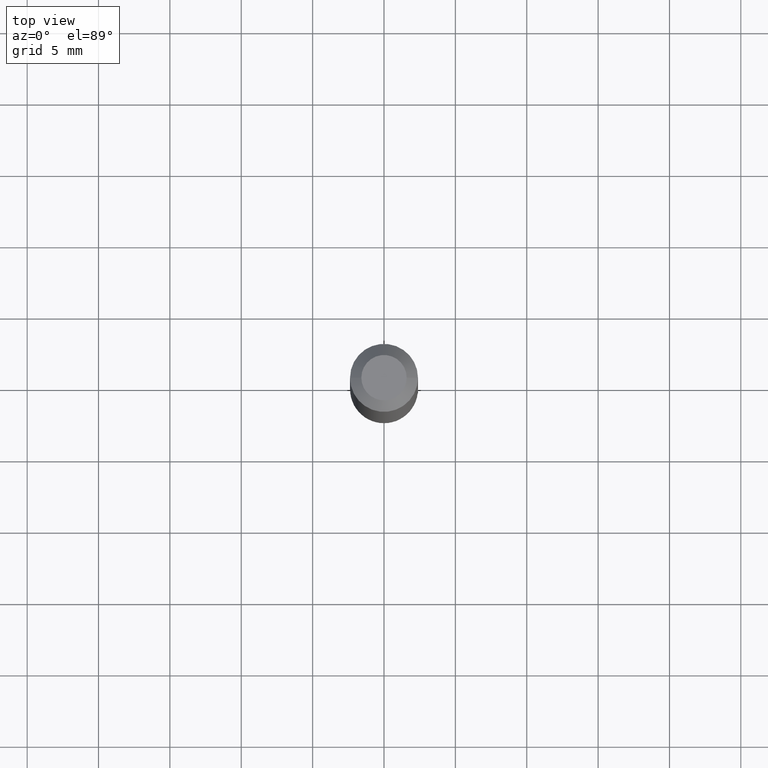
[diagram: clean part render]
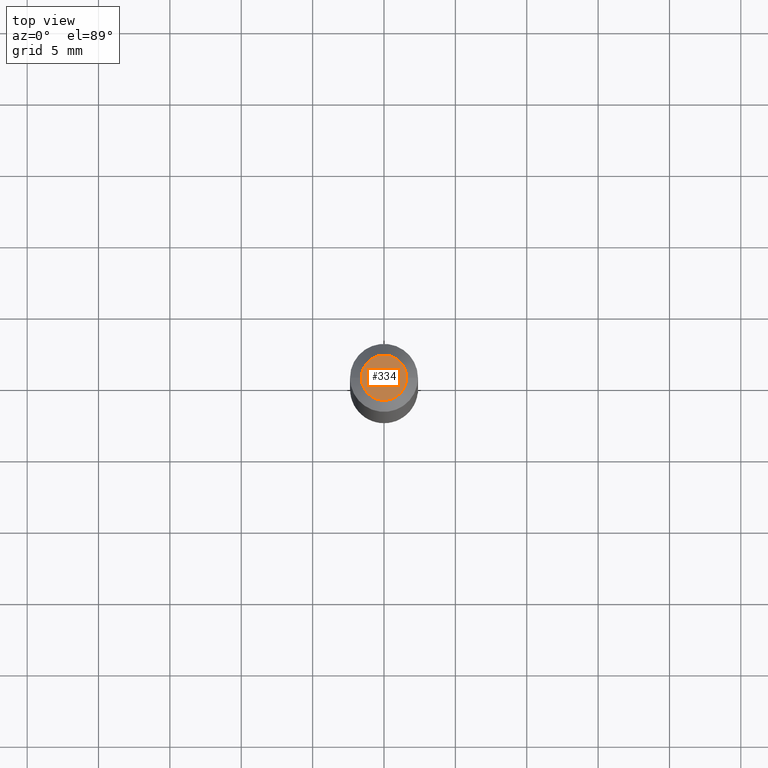
[diagram: same view with one face highlighted and labeled with its STEP entity id]
A machine part, top view. The second image highlights one B-rep face of the part: STEP entity #334.
In plain terms, the highlighted planar face has unit normal (0, -0, -1).
Its self-contained STEP definition (entity closure, byte-faithful):
#4 = CARTESIAN_POINT ( 'NONE',  ( -9.358861080966648015E-47, 1.336197326842804765E-32, 3.827021247335480313E-18 ) ) ;
#22 = FACE_OUTER_BOUND ( 'NONE', #75, .T. ) ;
#50 = CIRCLE ( 'NONE', #324, 0.06255000000000002225 ) ;
#71 = DIRECTION ( 'NONE',  ( -2.445468806185136597E-29, 3.491481338843145583E-15, 1.000000000000000000 ) ) ;
#75 = EDGE_LOOP ( 'NONE', ( #278, #280 ) ) ;
#81 = DIRECTION ( 'NONE',  ( -1.000000000000000000, 6.982962677686265922E-15, -4.876176775795935793E-29 ) ) ;
#98 = VERTEX_POINT ( 'NONE', #352 ) ;
#101 = DIRECTION ( 'NONE',  ( 1.000000000000000000, -6.982962677686267499E-15, 4.876132606543208763E-29 ) ) ;
#119 = AXIS2_PLACEMENT_3D ( 'NONE', #165, #71, #289 ) ;
#148 = EDGE_CURVE ( 'NONE', #98, #252, #256, .T. ) ;
#165 = CARTESIAN_POINT ( 'NONE',  ( -9.358861080966648015E-47, 1.336197326842804765E-32, 3.827021247335480313E-18 ) ) ;
#187 = DIRECTION ( 'NONE',  ( -2.445468806185136597E-29, 3.491481338843145583E-15, 1.000000000000000000 ) ) ;
#202 = EDGE_CURVE ( 'NONE', #252, #98, #50, .T. ) ;
#223 = AXIS2_PLACEMENT_3D ( 'NONE', #236, #263, #81 ) ;
#236 = CARTESIAN_POINT ( 'NONE',  ( -4.679430540483324007E-47, 6.680986634214023823E-33, 1.913510623667740157E-18 ) ) ;
#252 = VERTEX_POINT ( 'NONE', #269 ) ;
#256 = CIRCLE ( 'NONE', #119, 0.06255000000000002225 ) ;
#263 = DIRECTION ( 'NONE',  ( 2.438088387897960049E-29, -3.491481338843145188E-15, -1.000000000000000000 ) ) ;
#269 = CARTESIAN_POINT ( 'NONE',  ( 0.06255000000000002225, -5.906150274117987723E-16, 3.827021247339071787E-18 ) ) ;
#278 = ORIENTED_EDGE ( 'NONE', *, *, #148, .T. ) ;
#280 = ORIENTED_EDGE ( 'NONE', *, *, #202, .T. ) ;
#289 = DIRECTION ( 'NONE',  ( 1.000000000000000000, -6.982962677686267499E-15, 4.876132606543208763E-29 ) ) ;
#324 = AXIS2_PLACEMENT_3D ( 'NONE', #4, #187, #101 ) ;
#334 = ADVANCED_FACE ( 'NONE', ( #22 ), #348, .F. ) ;
#348 = PLANE ( 'NONE',  #223 ) ;
#352 = CARTESIAN_POINT ( 'NONE',  ( -0.06255000000000002225, 4.912514243752283606E-16, 3.827021247332235506E-18 ) ) ;